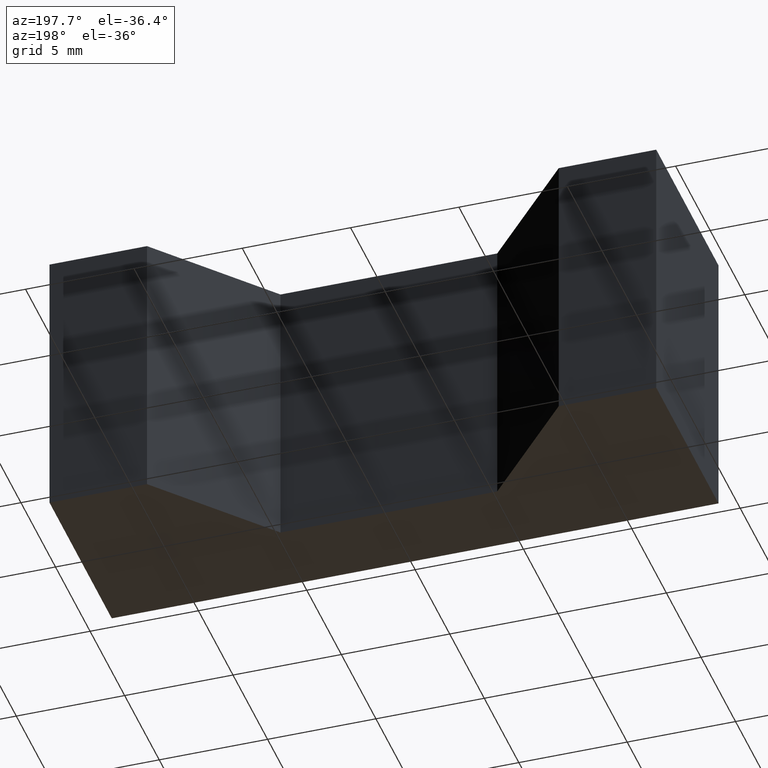
[diagram: clean part render]
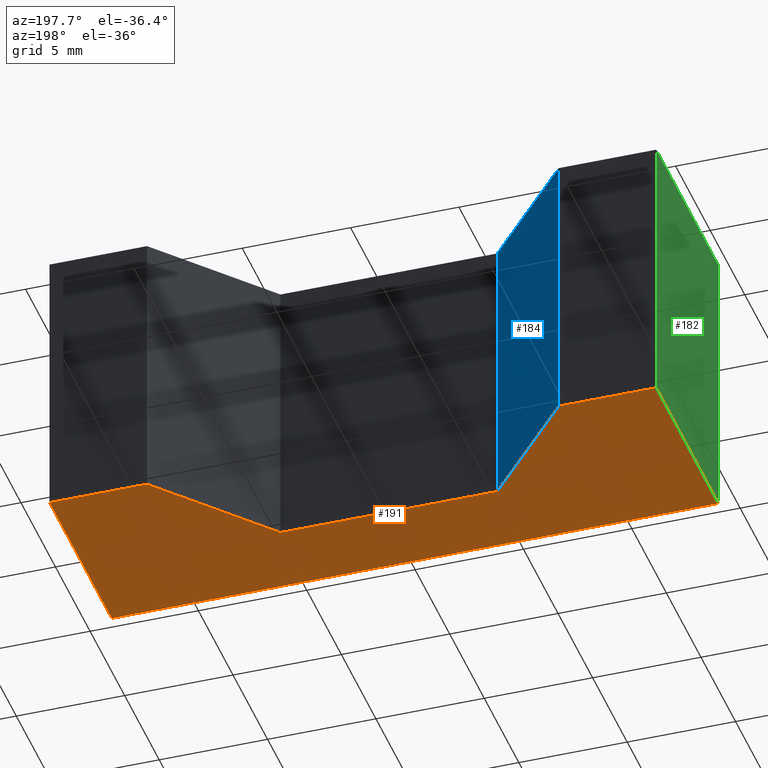
[diagram: same view with three faces highlighted in distinct colors, each labeled with its STEP entity id]
A machine part, auxiliary view with three faces highlighted in distinct colors.
Their STEP definitions:

[orange] entity #191 — the highlighted planar face has unit normal (0, 0, 1).
#25=FACE_OUTER_BOUND('',#35,.T.);
#35=EDGE_LOOP('',(#164,#165,#166,#167,#168,#169,#170,#171));
#38=LINE('',#279,#62);
#42=LINE('',#286,#66);
#45=LINE('',#292,#69);
#48=LINE('',#298,#72);
#51=LINE('',#304,#75);
#54=LINE('',#310,#78);
#57=LINE('',#316,#81);
#59=LINE('',#319,#83);
#62=VECTOR('',#231,10.);
#66=VECTOR('',#237,10.);
#69=VECTOR('',#242,10.);
#72=VECTOR('',#247,10.);
#75=VECTOR('',#252,10.);
#78=VECTOR('',#257,10.);
#81=VECTOR('',#262,10.);
#83=VECTOR('',#266,10.);
#86=VERTEX_POINT('',#276);
#87=VERTEX_POINT('',#278);
#89=VERTEX_POINT('',#284);
#91=VERTEX_POINT('',#290);
#93=VERTEX_POINT('',#296);
#95=VERTEX_POINT('',#302);
#97=VERTEX_POINT('',#308);
#99=VERTEX_POINT('',#314);
#102=EDGE_CURVE('',#87,#86,#38,.T.);
#106=EDGE_CURVE('',#86,#89,#42,.T.);
#109=EDGE_CURVE('',#89,#91,#45,.T.);
#112=EDGE_CURVE('',#91,#93,#48,.T.);
#115=EDGE_CURVE('',#93,#95,#51,.T.);
#118=EDGE_CURVE('',#95,#97,#54,.T.);
#121=EDGE_CURVE('',#97,#99,#57,.T.);
#123=EDGE_CURVE('',#99,#87,#59,.T.);
#164=ORIENTED_EDGE('',*,*,#123,.T.);
#165=ORIENTED_EDGE('',*,*,#102,.T.);
#166=ORIENTED_EDGE('',*,*,#106,.T.);
#167=ORIENTED_EDGE('',*,*,#109,.T.);
#168=ORIENTED_EDGE('',*,*,#112,.T.);
#169=ORIENTED_EDGE('',*,*,#115,.T.);
#170=ORIENTED_EDGE('',*,*,#118,.T.);
#171=ORIENTED_EDGE('',*,*,#121,.T.);
#181=PLANE('',#224);
#191=ADVANCED_FACE('',(#25),#181,.F.);
#224=AXIS2_PLACEMENT_3D('',#321,#269,#270);
#231=DIRECTION('',(0.,1.,0.));
#237=DIRECTION('',(1.,0.,0.));
#242=DIRECTION('',(0.654376744438942,-0.756168682462777,0.));
#247=DIRECTION('',(1.,0.,0.));
#252=DIRECTION('',(0.654376744438942,0.756168682462777,0.));
#257=DIRECTION('',(1.,0.,0.));
#262=DIRECTION('',(0.,-1.,0.));
#266=DIRECTION('',(-1.,0.,0.));
#269=DIRECTION('center_axis',(0.,0.,1.));
#270=DIRECTION('ref_axis',(1.,0.,0.));
#276=CARTESIAN_POINT('',(-14.,9.,0.));
#278=CARTESIAN_POINT('',(-14.,0.,0.));
#279=CARTESIAN_POINT('',(-14.,0.,0.));
#284=CARTESIAN_POINT('',(-9.5,9.,0.));
#286=CARTESIAN_POINT('',(-14.,9.,0.));
#290=CARTESIAN_POINT('',(-5.,3.8,0.));
#292=CARTESIAN_POINT('',(-9.5,9.,0.));
#296=CARTESIAN_POINT('',(5.,3.8,0.));
#298=CARTESIAN_POINT('',(-5.,3.8,0.));
#302=CARTESIAN_POINT('',(9.5,9.,0.));
#304=CARTESIAN_POINT('',(5.,3.8,0.));
#308=CARTESIAN_POINT('',(14.,9.,0.));
#310=CARTESIAN_POINT('',(9.5,9.,0.));
#314=CARTESIAN_POINT('',(14.,0.,0.));
#316=CARTESIAN_POINT('',(14.,9.,0.));
#319=CARTESIAN_POINT('',(14.,0.,0.));
#321=CARTESIAN_POINT('Origin',(8.32667268468867E-16,3.65726632360889,0.));

[blue] entity #184 — the highlighted planar face has unit normal (0.7562, 0.6544, 0).
#18=FACE_OUTER_BOUND('',#28,.T.);
#28=EDGE_LOOP('',(#132,#133,#134,#135));
#41=LINE('',#285,#65);
#43=LINE('',#289,#67);
#44=LINE('',#291,#68);
#45=LINE('',#292,#69);
#65=VECTOR('',#236,10.);
#67=VECTOR('',#240,10.);
#68=VECTOR('',#241,10.);
#69=VECTOR('',#242,10.);
#88=VERTEX_POINT('',#282);
#89=VERTEX_POINT('',#284);
#90=VERTEX_POINT('',#288);
#91=VERTEX_POINT('',#290);
#105=EDGE_CURVE('',#89,#88,#41,.T.);
#107=EDGE_CURVE('',#88,#90,#43,.T.);
#108=EDGE_CURVE('',#91,#90,#44,.T.);
#109=EDGE_CURVE('',#89,#91,#45,.T.);
#132=ORIENTED_EDGE('',*,*,#107,.T.);
#133=ORIENTED_EDGE('',*,*,#108,.F.);
#134=ORIENTED_EDGE('',*,*,#109,.F.);
#135=ORIENTED_EDGE('',*,*,#105,.T.);
#174=PLANE('',#217);
#184=ADVANCED_FACE('',(#18),#174,.T.);
#217=AXIS2_PLACEMENT_3D('',#287,#238,#239);
#236=DIRECTION('',(0.,0.,1.));
#238=DIRECTION('center_axis',(0.756168682462777,0.654376744438942,0.));
#239=DIRECTION('ref_axis',(0.,0.,-1.));
#240=DIRECTION('',(0.654376744438942,-0.756168682462777,0.));
#241=DIRECTION('',(0.,0.,1.));
#242=DIRECTION('',(0.654376744438942,-0.756168682462777,0.));
#282=CARTESIAN_POINT('',(-9.5,9.,13.));
#284=CARTESIAN_POINT('',(-9.5,9.,0.));
#285=CARTESIAN_POINT('',(-9.5,9.,0.));
#287=CARTESIAN_POINT('Origin',(-9.5,9.,0.));
#288=CARTESIAN_POINT('',(-5.,3.8,13.));
#289=CARTESIAN_POINT('',(-9.5,9.,13.));
#290=CARTESIAN_POINT('',(-5.,3.8,0.));
#291=CARTESIAN_POINT('',(-5.,3.8,0.));
#292=CARTESIAN_POINT('',(-9.5,9.,0.));

[green] entity #182 — the highlighted planar face has unit normal (-1, 0, 0).
#16=FACE_OUTER_BOUND('',#26,.T.);
#26=EDGE_LOOP('',(#124,#125,#126,#127));
#36=LINE('',#275,#60);
#37=LINE('',#277,#61);
#38=LINE('',#279,#62);
#39=LINE('',#280,#63);
#60=VECTOR('',#229,10.);
#61=VECTOR('',#230,10.);
#62=VECTOR('',#231,10.);
#63=VECTOR('',#232,10.);
#84=VERTEX_POINT('',#273);
#85=VERTEX_POINT('',#274);
#86=VERTEX_POINT('',#276);
#87=VERTEX_POINT('',#278);
#100=EDGE_CURVE('',#84,#85,#36,.T.);
#101=EDGE_CURVE('',#86,#85,#37,.T.);
#102=EDGE_CURVE('',#87,#86,#38,.T.);
#103=EDGE_CURVE('',#87,#84,#39,.T.);
#124=ORIENTED_EDGE('',*,*,#100,.T.);
#125=ORIENTED_EDGE('',*,*,#101,.F.);
#126=ORIENTED_EDGE('',*,*,#102,.F.);
#127=ORIENTED_EDGE('',*,*,#103,.T.);
#172=PLANE('',#215);
#182=ADVANCED_FACE('',(#16),#172,.T.);
#215=AXIS2_PLACEMENT_3D('',#272,#227,#228);
#227=DIRECTION('center_axis',(-1.,0.,0.));
#228=DIRECTION('ref_axis',(0.,0.,1.));
#229=DIRECTION('',(0.,1.,0.));
#230=DIRECTION('',(0.,0.,1.));
#231=DIRECTION('',(0.,1.,0.));
#232=DIRECTION('',(0.,0.,1.));
#272=CARTESIAN_POINT('Origin',(-14.,0.,0.));
#273=CARTESIAN_POINT('',(-14.,0.,13.));
#274=CARTESIAN_POINT('',(-14.,9.,13.));
#275=CARTESIAN_POINT('',(-14.,0.,13.));
#276=CARTESIAN_POINT('',(-14.,9.,0.));
#277=CARTESIAN_POINT('',(-14.,9.,0.));
#278=CARTESIAN_POINT('',(-14.,0.,0.));
#279=CARTESIAN_POINT('',(-14.,0.,0.));
#280=CARTESIAN_POINT('',(-14.,0.,0.));